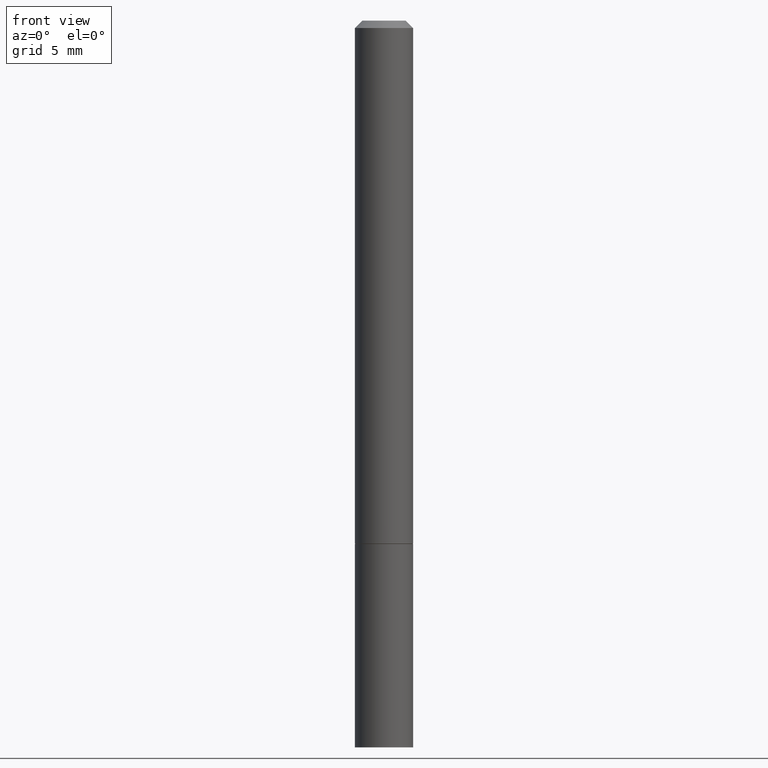
[diagram: clean part render]
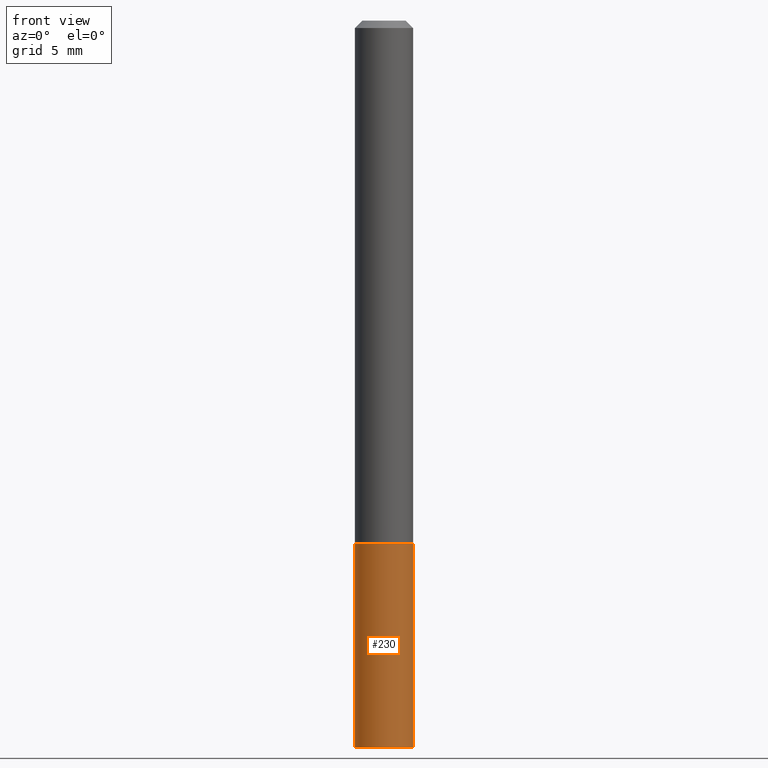
[diagram: same view with one face highlighted and labeled with its STEP entity id]
A machine part, front view. The second image highlights one B-rep face of the part: STEP entity #230.
In plain terms, the highlighted cylindrical surface (edge-blend (fillet) strip) has radius 2.0002 mm, axis along (-0, 0, 1).
Its self-contained STEP definition (entity closure, byte-faithful):
#1 = AXIS2_PLACEMENT_3D ( 'NONE', #326, #156, #240 ) ;
#19 = DIRECTION ( 'NONE',  ( -2.445468806185136877E-29, 3.491481338843145188E-15, 1.000000000000000000 ) ) ;
#40 = VECTOR ( 'NONE', #213, 39.37007874015748143 ) ;
#45 = DIRECTION ( 'NONE',  ( 1.000000000000000000, -6.982962677686265922E-15, 4.876176775795935232E-29 ) ) ;
#65 = ORIENTED_EDGE ( 'NONE', *, *, #112, .T. ) ;
#71 = ORIENTED_EDGE ( 'NONE', *, *, #218, .T. ) ;
#72 = CARTESIAN_POINT ( 'NONE',  ( 0.000000000000000000, 0.000000000000000000, 0.000000000000000000 ) ) ;
#76 = CIRCLE ( 'NONE', #190, 0.07875000000000000056 ) ;
#82 = VERTEX_POINT ( 'NONE', #200 ) ;
#112 = EDGE_CURVE ( 'NONE', #82, #289, #136, .T. ) ;
#113 = CARTESIAN_POINT ( 'NONE',  ( 3.465962939006194880E-29, -4.948476501542391231E-15, -1.417300000000000226 ) ) ;
#115 = DIRECTION ( 'NONE',  ( 1.000000000000000000, -6.982962677686261977E-15, 0.000000000000000000 ) ) ;
#136 = LINE ( 'NONE', #353, #40 ) ;
#149 = ORIENTED_EDGE ( 'NONE', *, *, #163, .F. ) ;
#153 = ORIENTED_EDGE ( 'NONE', *, *, #294, .F. ) ;
#156 = DIRECTION ( 'NONE',  ( -2.445468806185136597E-29, 3.491481338843145583E-15, 1.000000000000000000 ) ) ;
#159 = VECTOR ( 'NONE', #19, 39.37007874015748143 ) ;
#163 = EDGE_CURVE ( 'NONE', #309, #172, #186, .T. ) ;
#164 = CARTESIAN_POINT ( 'NONE',  ( -0.07875000000000000056, -5.351176354116483062E-15, -1.968500000000000139 ) ) ;
#172 = VERTEX_POINT ( 'NONE', #292 ) ;
#183 = DIRECTION ( 'NONE',  ( -2.445468806185136597E-29, 3.491481338843145583E-15, 1.000000000000000000 ) ) ;
#186 = LINE ( 'NONE', #267, #159 ) ;
#190 = AXIS2_PLACEMENT_3D ( 'NONE', #113, #223, #115 ) ;
#200 = CARTESIAN_POINT ( 'NONE',  ( 0.07875000000000000056, -7.422889326380525053E-15, -1.968500000000000139 ) ) ;
#213 = DIRECTION ( 'NONE',  ( -2.445468806185136877E-29, 3.491481338843145188E-15, 1.000000000000000000 ) ) ;
#218 = EDGE_CURVE ( 'NONE', #309, #82, #317, .T. ) ;
#223 = DIRECTION ( 'NONE',  ( -2.445468806185136597E-29, 3.491481338843145583E-15, 1.000000000000000000 ) ) ;
#230 = ADVANCED_FACE ( 'NONE', ( #268 ), #242, .T. ) ;
#240 = DIRECTION ( 'NONE',  ( 1.000000000000000000, -6.982962677686261977E-15, 0.000000000000000000 ) ) ;
#242 = CYLINDRICAL_SURFACE ( 'NONE', #263, 0.07875000000000000056 ) ;
#263 = AXIS2_PLACEMENT_3D ( 'NONE', #72, #183, #45 ) ;
#267 = CARTESIAN_POINT ( 'NONE',  ( -0.07875000000000000056, 5.595524044110789003E-16, -3.873661383575737792E-30 ) ) ;
#268 = FACE_OUTER_BOUND ( 'NONE', #283, .T. ) ;
#283 = EDGE_LOOP ( 'NONE', ( #149, #71, #65, #153 ) ) ;
#289 = VERTEX_POINT ( 'NONE', #362 ) ;
#292 = CARTESIAN_POINT ( 'NONE',  ( -0.07875000000000000056, -5.351176354116483062E-15, -1.417300000000000226 ) ) ;
#294 = EDGE_CURVE ( 'NONE', #172, #289, #76, .T. ) ;
#309 = VERTEX_POINT ( 'NONE', #164 ) ;
#317 = CIRCLE ( 'NONE', #1, 0.07875000000000000056 ) ;
#326 = CARTESIAN_POINT ( 'NONE',  ( 4.813905344975441835E-29, -6.872981015512731707E-15, -1.968500000000000139 ) ) ;
#353 = CARTESIAN_POINT ( 'NONE',  ( 0.07875000000000000056, -5.499083108677934443E-16, 3.839989210939299016E-30 ) ) ;
#362 = CARTESIAN_POINT ( 'NONE',  ( 0.07875000000000000056, -5.498384812410184577E-15, -1.417300000000000226 ) ) ;